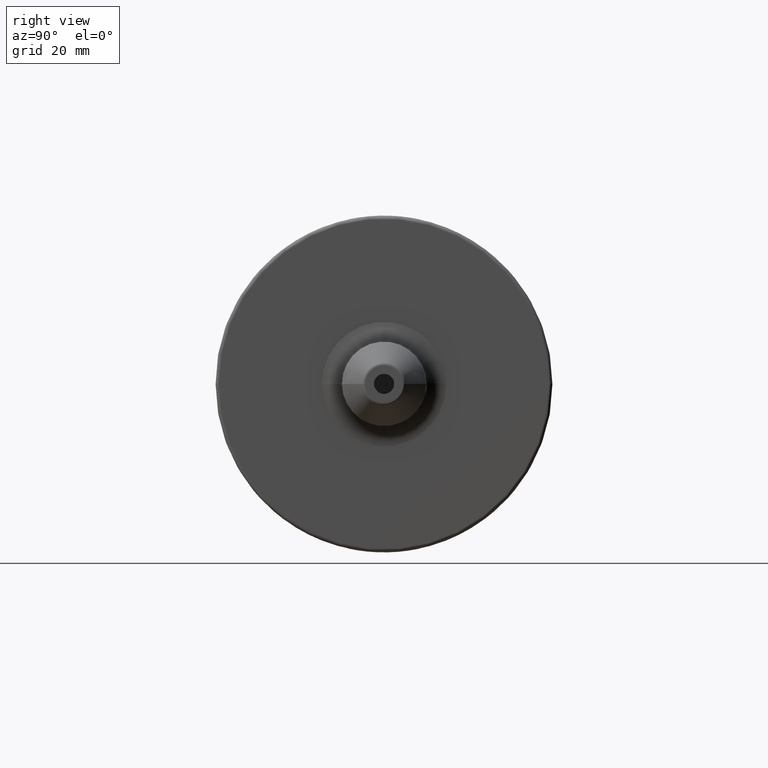
[diagram: clean part render]
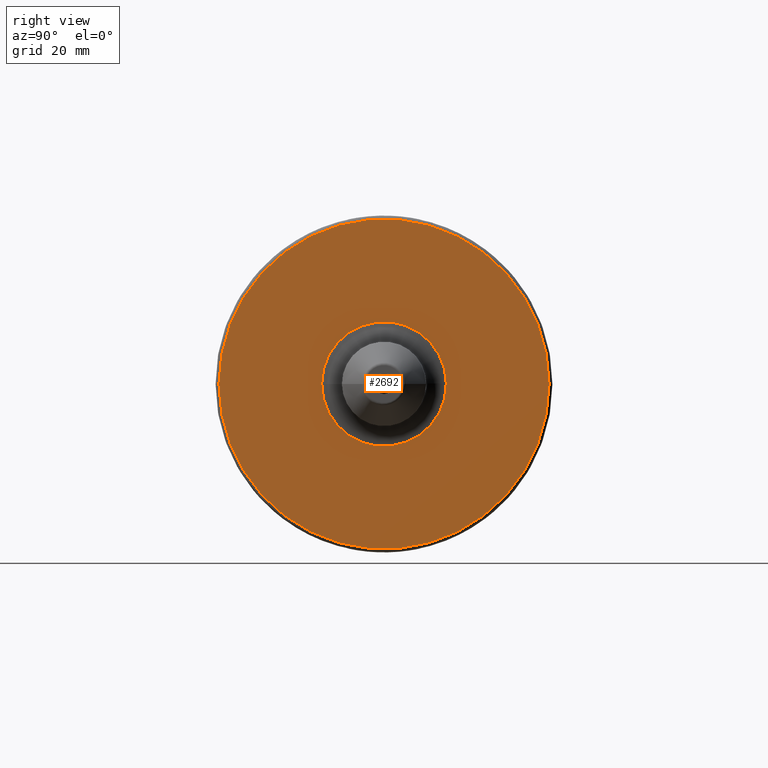
[diagram: same view with one face highlighted and labeled with its STEP entity id]
A machine part, right view. The second image highlights one B-rep face of the part: STEP entity #2692.
In plain terms, the highlighted planar face has unit normal (1, 0, 0).
Its self-contained STEP definition (entity closure, byte-faithful):
#814=CARTESIAN_POINT('',(3.8E1,0.E0,0.E0));
#815=DIRECTION('',(1.E0,0.E0,0.E0));
#816=DIRECTION('',(0.E0,1.E0,0.E0));
#817=AXIS2_PLACEMENT_3D('',#814,#815,#816);
#829=CARTESIAN_POINT('',(3.8E1,0.E0,0.E0));
#830=DIRECTION('',(-1.E0,0.E0,0.E0));
#831=DIRECTION('',(0.E0,1.E0,0.E0));
#832=AXIS2_PLACEMENT_3D('',#829,#830,#831);
#834=CARTESIAN_POINT('',(3.8E1,0.E0,0.E0));
#835=DIRECTION('',(1.E0,0.E0,0.E0));
#836=DIRECTION('',(0.E0,-1.E0,0.E0));
#837=AXIS2_PLACEMENT_3D('',#834,#835,#836);
#839=CARTESIAN_POINT('',(3.8E1,0.E0,0.E0));
#840=DIRECTION('',(1.E0,0.E0,0.E0));
#841=DIRECTION('',(0.E0,9.999542375835E-1,9.566751735866E-3));
#842=AXIS2_PLACEMENT_3D('',#839,#840,#841);
#1437=CARTESIAN_POINT('',(3.8E1,4.89875E1,0.E0));
#1438=VERTEX_POINT('',#1437);
#1439=CARTESIAN_POINT('',(3.8E1,-4.89875E1,-1.199847701465E-14));
#1440=VERTEX_POINT('',#1439);
#1540=CARTESIAN_POINT('',(3.800000000247E1,1.849933827071E1,1.756597135208E-1));
#1541=VERTEX_POINT('',#1540);
#1557=CARTESIAN_POINT('',(3.8E1,-1.85E1,0.E0));
#1558=VERTEX_POINT('',#1557);
#2677=CARTESIAN_POINT('',(3.8E1,0.E0,0.E0));
#2678=DIRECTION('',(1.E0,0.E0,0.E0));
#2679=DIRECTION('',(0.E0,-1.E0,0.E0));
#2680=AXIS2_PLACEMENT_3D('',#2677,#2678,#2679);
#2681=PLANE('',#2680);
#2682=ORIENTED_EDGE('',*,*,#2672,.T.);
#2683=ORIENTED_EDGE('',*,*,#2656,.F.);
#2684=EDGE_LOOP('',(#2682,#2683));
#2685=FACE_OUTER_BOUND('',#2684,.F.);
#2687=ORIENTED_EDGE('',*,*,#2686,.T.);
#2689=ORIENTED_EDGE('',*,*,#2688,.T.);
#2690=EDGE_LOOP('',(#2687,#2689));
#2691=FACE_BOUND('',#2690,.F.);
#2692=ADVANCED_FACE('',(#2685,#2691),#2681,.T.);
#818=CIRCLE('',#817,4.89875E1);
#833=CIRCLE('',#832,4.89875E1);
#838=CIRCLE('',#837,1.85E1);
#843=CIRCLE('',#842,1.85E1);
#2656=EDGE_CURVE('',#1438,#1440,#818,.T.);
#2672=EDGE_CURVE('',#1438,#1440,#833,.T.);
#2686=EDGE_CURVE('',#1558,#1541,#838,.T.);
#2688=EDGE_CURVE('',#1541,#1558,#843,.T.);